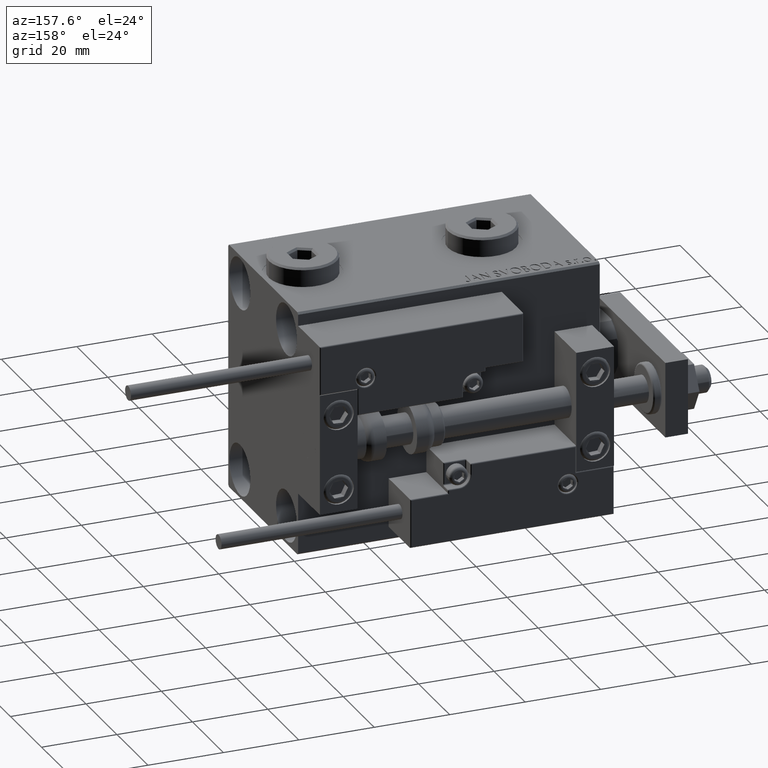
[diagram: clean part render]
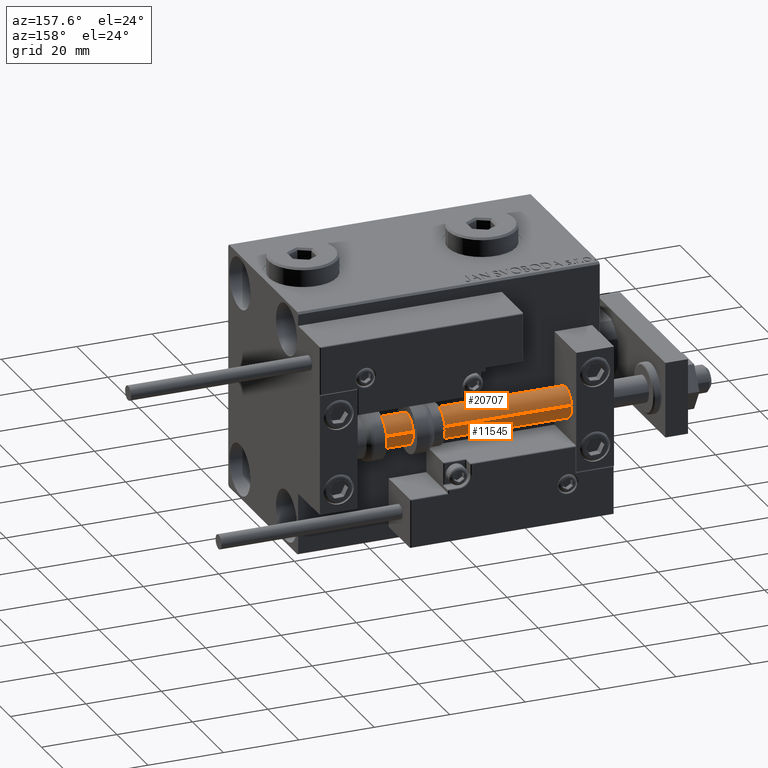
[diagram: same view with one multi-face feature highlighted, each face labeled with its STEP entity id]
A machine part, auxiliary view. The highlighted faces form ONE feature: a constant-radius fillet chain: 2 tangent blend faces with common blend radius 4 mm. The faces share edges in the B-rep.
Their STEP definitions:
[1] entity #20707 (Cylinder):
#1276 = FACE_OUTER_BOUND ( 'NONE', #10659, .T. ) ;
#2694 = EDGE_CURVE ( 'NONE', #9985, #26882, #48987, .T. ) ;
#4436 = EDGE_CURVE ( 'NONE', #19287, #36790, #20628, .T. ) ;
#5736 = AXIS2_PLACEMENT_3D ( 'NONE', #46829, #42127, #15293 ) ;
#7360 = AXIS2_PLACEMENT_3D ( 'NONE', #24943, #48907, #24415 ) ;
#8150 = AXIS2_PLACEMENT_3D ( 'NONE', #32303, #12500, #13284 ) ;
#9985 = VERTEX_POINT ( 'NONE', #24819 ) ;
#10659 = EDGE_LOOP ( 'NONE', ( #48423, #39167, #38902, #49763 ) ) ;
#11751 = VECTOR ( 'NONE', #18894, 1000.000000000000000 ) ;
#12500 = DIRECTION ( 'NONE',  ( -0.000000000000000000, -0.000000000000000000, -1.000000000000000000 ) ) ;
#13284 = DIRECTION ( 'NONE',  ( -1.000000000000000000, 0.000000000000000000, 0.000000000000000000 ) ) ;
#15245 = CARTESIAN_POINT ( 'NONE',  ( 4.000000000000000000, 4.898587196589412829E-16, 80.00000000000000000 ) ) ;
#15293 = DIRECTION ( 'NONE',  ( 1.000000000000000000, 0.000000000000000000, 0.000000000000000000 ) ) ;
#16353 = CARTESIAN_POINT ( 'NONE',  ( -4.000000000000000000, 0.000000000000000000, 2.000000000000029310 ) ) ;
#18894 = DIRECTION ( 'NONE',  ( -0.000000000000000000, -0.000000000000000000, -1.000000000000000000 ) ) ;
#19287 = VERTEX_POINT ( 'NONE', #34233 ) ;
#20628 = CIRCLE ( 'NONE', #5736, 4.000000000000000000 ) ;
#20707 = ADVANCED_FACE ( 'NONE', ( #1276 ), #48978, .T. ) ;
#24415 = DIRECTION ( 'NONE',  ( 1.000000000000000000, 0.000000000000000000, 0.000000000000000000 ) ) ;
#24819 = CARTESIAN_POINT ( 'NONE',  ( 4.000000000000000000, 4.898587196589412829E-16, 2.000000000000029310 ) ) ;
#24943 = CARTESIAN_POINT ( 'NONE',  ( 0.000000000000000000, 0.000000000000000000, 2.000000000000029310 ) ) ;
#26882 = VERTEX_POINT ( 'NONE', #16353 ) ;
#27542 = CARTESIAN_POINT ( 'NONE',  ( -4.000000000000000000, 0.000000000000000000, 80.00000000000000000 ) ) ;
#27795 = LINE ( 'NONE', #27542, #35201 ) ;
#32303 = CARTESIAN_POINT ( 'NONE',  ( 0.000000000000000000, 0.000000000000000000, 80.00000000000000000 ) ) ;
#34233 = CARTESIAN_POINT ( 'NONE',  ( 4.000000000000000000, 4.898587196589412829E-16, 80.00000000000000000 ) ) ;
#35201 = VECTOR ( 'NONE', #43424, 1000.000000000000000 ) ;
#36614 = EDGE_CURVE ( 'NONE', #19287, #9985, #46517, .T. ) ;
#36790 = VERTEX_POINT ( 'NONE', #42730 ) ;
#38902 = ORIENTED_EDGE ( 'NONE', *, *, #2694, .T. ) ;
#39167 = ORIENTED_EDGE ( 'NONE', *, *, #36614, .T. ) ;
#42127 = DIRECTION ( 'NONE',  ( 0.000000000000000000, 0.000000000000000000, 1.000000000000000000 ) ) ;
#42730 = CARTESIAN_POINT ( 'NONE',  ( -4.000000000000000000, 0.000000000000000000, 80.00000000000000000 ) ) ;
#43424 = DIRECTION ( 'NONE',  ( -0.000000000000000000, -0.000000000000000000, -1.000000000000000000 ) ) ;
#44100 = EDGE_CURVE ( 'NONE', #36790, #26882, #27795, .T. ) ;
#46517 = LINE ( 'NONE', #15245, #11751 ) ;
#46829 = CARTESIAN_POINT ( 'NONE',  ( 0.000000000000000000, 0.000000000000000000, 80.00000000000000000 ) ) ;
#48423 = ORIENTED_EDGE ( 'NONE', *, *, #4436, .F. ) ;
#48907 = DIRECTION ( 'NONE',  ( -0.000000000000000000, -0.000000000000000000, 1.000000000000000000 ) ) ;
#48978 = CYLINDRICAL_SURFACE ( 'NONE', #8150, 4.000000000000000000 ) ;
#48987 = CIRCLE ( 'NONE', #7360, 4.000000000000000000 ) ;
#49763 = ORIENTED_EDGE ( 'NONE', *, *, #44100, .F. ) ;
[2] entity #11545 (Cylinder):
#1449 = CIRCLE ( 'NONE', #2305, 4.000000000000000000 ) ;
#2305 = AXIS2_PLACEMENT_3D ( 'NONE', #50690, #38191, #14742 ) ;
#4967 = AXIS2_PLACEMENT_3D ( 'NONE', #29190, #44824, #37267 ) ;
#6217 = CARTESIAN_POINT ( 'NONE',  ( 0.000000000000000000, 0.000000000000000000, 80.00000000000000000 ) ) ;
#7639 = ORIENTED_EDGE ( 'NONE', *, *, #27429, .T. ) ;
#9985 = VERTEX_POINT ( 'NONE', #24819 ) ;
#11545 = ADVANCED_FACE ( 'NONE', ( #13797 ), #29689, .T. ) ;
#11751 = VECTOR ( 'NONE', #18894, 1000.000000000000000 ) ;
#13797 = FACE_OUTER_BOUND ( 'NONE', #32113, .T. ) ;
#14742 = DIRECTION ( 'NONE',  ( 1.000000000000000000, 0.000000000000000000, 0.000000000000000000 ) ) ;
#15245 = CARTESIAN_POINT ( 'NONE',  ( 4.000000000000000000, 4.898587196589412829E-16, 80.00000000000000000 ) ) ;
#16353 = CARTESIAN_POINT ( 'NONE',  ( -4.000000000000000000, 0.000000000000000000, 2.000000000000029310 ) ) ;
#18894 = DIRECTION ( 'NONE',  ( -0.000000000000000000, -0.000000000000000000, -1.000000000000000000 ) ) ;
#19020 = EDGE_CURVE ( 'NONE', #36790, #19287, #1449, .T. ) ;
#19287 = VERTEX_POINT ( 'NONE', #34233 ) ;
#21874 = DIRECTION ( 'NONE',  ( -1.000000000000000000, 0.000000000000000000, 0.000000000000000000 ) ) ;
#24819 = CARTESIAN_POINT ( 'NONE',  ( 4.000000000000000000, 4.898587196589412829E-16, 2.000000000000029310 ) ) ;
#25536 = DIRECTION ( 'NONE',  ( -0.000000000000000000, -0.000000000000000000, -1.000000000000000000 ) ) ;
#26285 = AXIS2_PLACEMENT_3D ( 'NONE', #6217, #25536, #21874 ) ;
#26882 = VERTEX_POINT ( 'NONE', #16353 ) ;
#27429 = EDGE_CURVE ( 'NONE', #26882, #9985, #35066, .T. ) ;
#27542 = CARTESIAN_POINT ( 'NONE',  ( -4.000000000000000000, 0.000000000000000000, 80.00000000000000000 ) ) ;
#27795 = LINE ( 'NONE', #27542, #35201 ) ;
#29190 = CARTESIAN_POINT ( 'NONE',  ( 0.000000000000000000, 0.000000000000000000, 2.000000000000029310 ) ) ;
#29689 = CYLINDRICAL_SURFACE ( 'NONE', #26285, 4.000000000000000000 ) ;
#32113 = EDGE_LOOP ( 'NONE', ( #46612, #33667, #39223, #7639 ) ) ;
#33667 = ORIENTED_EDGE ( 'NONE', *, *, #19020, .F. ) ;
#34233 = CARTESIAN_POINT ( 'NONE',  ( 4.000000000000000000, 4.898587196589412829E-16, 80.00000000000000000 ) ) ;
#35066 = CIRCLE ( 'NONE', #4967, 4.000000000000000000 ) ;
#35201 = VECTOR ( 'NONE', #43424, 1000.000000000000000 ) ;
#36614 = EDGE_CURVE ( 'NONE', #19287, #9985, #46517, .T. ) ;
#36790 = VERTEX_POINT ( 'NONE', #42730 ) ;
#37267 = DIRECTION ( 'NONE',  ( 1.000000000000000000, 0.000000000000000000, 0.000000000000000000 ) ) ;
#38191 = DIRECTION ( 'NONE',  ( 0.000000000000000000, 0.000000000000000000, 1.000000000000000000 ) ) ;
#39223 = ORIENTED_EDGE ( 'NONE', *, *, #44100, .T. ) ;
#42730 = CARTESIAN_POINT ( 'NONE',  ( -4.000000000000000000, 0.000000000000000000, 80.00000000000000000 ) ) ;
#43424 = DIRECTION ( 'NONE',  ( -0.000000000000000000, -0.000000000000000000, -1.000000000000000000 ) ) ;
#44100 = EDGE_CURVE ( 'NONE', #36790, #26882, #27795, .T. ) ;
#44824 = DIRECTION ( 'NONE',  ( -0.000000000000000000, -0.000000000000000000, 1.000000000000000000 ) ) ;
#46517 = LINE ( 'NONE', #15245, #11751 ) ;
#46612 = ORIENTED_EDGE ( 'NONE', *, *, #36614, .F. ) ;
#50690 = CARTESIAN_POINT ( 'NONE',  ( 0.000000000000000000, 0.000000000000000000, 80.00000000000000000 ) ) ;